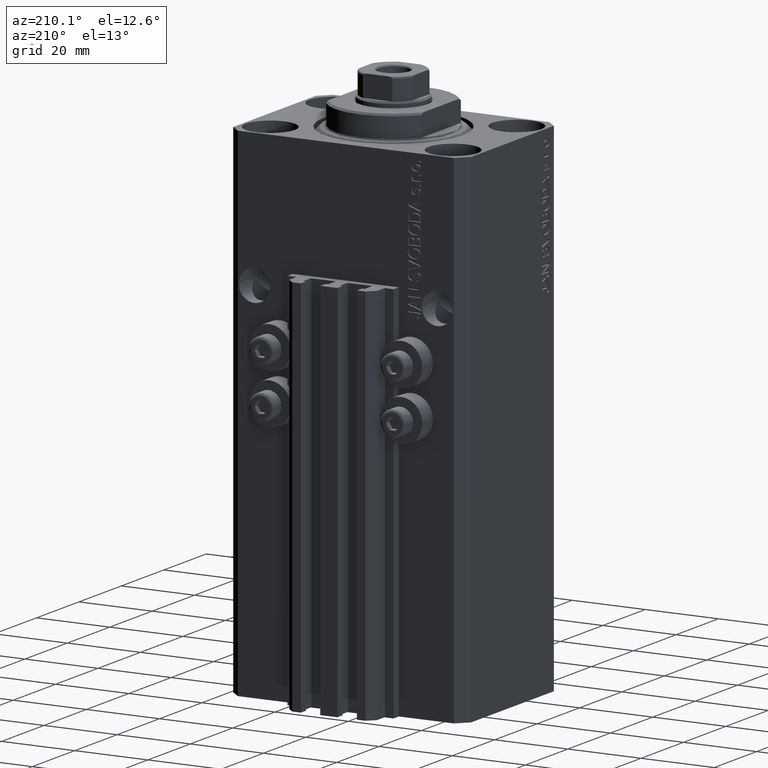
[diagram: clean part render]
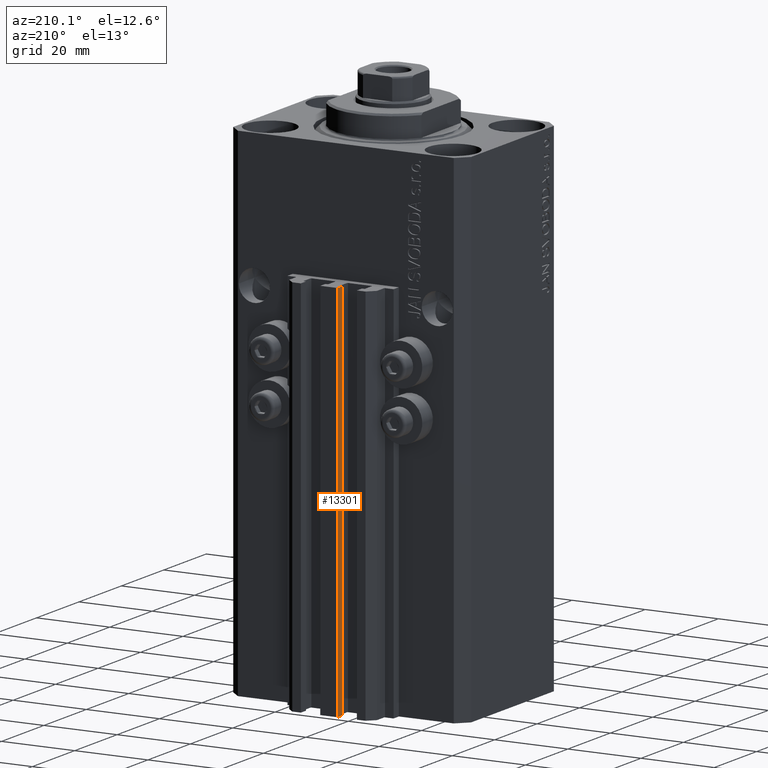
[diagram: same view with one face highlighted and labeled with its STEP entity id]
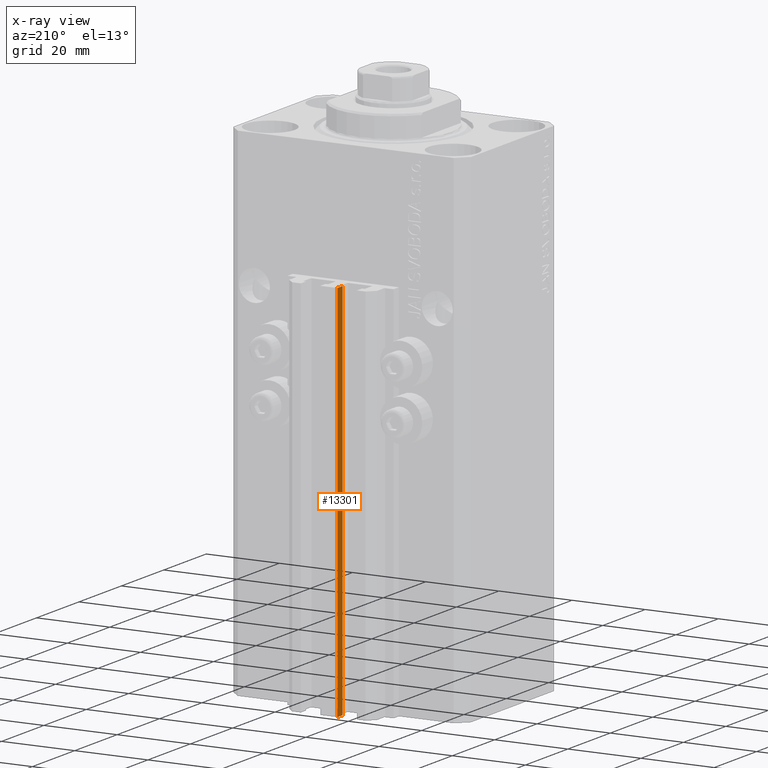
[diagram: x-ray of the same camera — body ghosted, the highlighted face saturated]
A machine part, auxiliary view. The second image highlights one B-rep face of the part: STEP entity #13301.
The next image is the same camera in x-ray: the body ghosted, the highlighted face saturated — about 0% of this face is hidden behind the body in this view.
In plain terms, the highlighted planar face has unit normal (-1, 0, 0).
Its self-contained STEP definition (entity closure, byte-faithful):
#4279 = CARTESIAN_POINT ( 'NONE',  ( -2.350000000000003197, 30.49999999999949907, -137.0000000000000000 ) ) ;
#4382 = CARTESIAN_POINT ( 'NONE',  ( -2.350000000000003197, 30.49999999999949907, -137.0000000000000000 ) ) ;
#5143 = VECTOR ( 'NONE', #42823, 1000.000000000000000 ) ;
#5209 = VERTEX_POINT ( 'NONE', #16045 ) ;
#7258 = LINE ( 'NONE', #4382, #36940 ) ;
#8271 = DIRECTION ( 'NONE',  ( 0.000000000000000000, -1.000000000000000000, 0.000000000000000000 ) ) ;
#11607 = ORIENTED_EDGE ( 'NONE', *, *, #12078, .T. ) ;
#12078 = EDGE_CURVE ( 'NONE', #5209, #15652, #15076, .T. ) ;
#13301 = ADVANCED_FACE ( 'NONE', ( #39895 ), #21757, .T. ) ;
#15076 = LINE ( 'NONE', #26037, #34769 ) ;
#15125 = DIRECTION ( 'NONE',  ( 0.000000000000000000, -1.000000000000000000, 0.000000000000000000 ) ) ;
#15652 = VERTEX_POINT ( 'NONE', #34007 ) ;
#16045 = CARTESIAN_POINT ( 'NONE',  ( -2.350000000000003197, 28.09999999999950049, -137.0000000000000000 ) ) ;
#17670 = VECTOR ( 'NONE', #8271, 1000.000000000000000 ) ;
#19624 = EDGE_CURVE ( 'NONE', #28096, #19827, #42588, .T. ) ;
#19827 = VERTEX_POINT ( 'NONE', #27465 ) ;
#21041 = ORIENTED_EDGE ( 'NONE', *, *, #19624, .F. ) ;
#21106 = CARTESIAN_POINT ( 'NONE',  ( -2.350000000000003197, 30.49999999999949907, -137.0000000000000000 ) ) ;
#21757 = PLANE ( 'NONE',  #41652 ) ;
#26037 = CARTESIAN_POINT ( 'NONE',  ( -2.350000000000003197, 28.09999999999950049, -137.0000000000000000 ) ) ;
#26267 = DIRECTION ( 'NONE',  ( 0.000000000000000000, 0.000000000000000000, 1.000000000000000000 ) ) ;
#27317 = CARTESIAN_POINT ( 'NONE',  ( -2.350000000000003197, 30.49999999999949907, -137.0000000000000000 ) ) ;
#27465 = CARTESIAN_POINT ( 'NONE',  ( -2.350000000000003197, 30.49999999999949907, -33.00000000000000000 ) ) ;
#28096 = VERTEX_POINT ( 'NONE', #27317 ) ;
#29732 = LINE ( 'NONE', #37140, #17670 ) ;
#30832 = ORIENTED_EDGE ( 'NONE', *, *, #33007, .F. ) ;
#32267 = DIRECTION ( 'NONE',  ( 0.000000000000000000, 0.000000000000000000, 1.000000000000000000 ) ) ;
#33007 = EDGE_CURVE ( 'NONE', #19827, #15652, #29732, .T. ) ;
#33319 = ORIENTED_EDGE ( 'NONE', *, *, #39641, .T. ) ;
#34007 = CARTESIAN_POINT ( 'NONE',  ( -2.350000000000003197, 28.09999999999950049, -33.00000000000000000 ) ) ;
#34769 = VECTOR ( 'NONE', #26267, 1000.000000000000000 ) ;
#36940 = VECTOR ( 'NONE', #15125, 1000.000000000000000 ) ;
#37140 = CARTESIAN_POINT ( 'NONE',  ( -2.350000000000003197, 30.49999999999949907, -33.00000000000000000 ) ) ;
#39641 = EDGE_CURVE ( 'NONE', #28096, #5209, #7258, .T. ) ;
#39895 = FACE_OUTER_BOUND ( 'NONE', #41764, .T. ) ;
#41652 = AXIS2_PLACEMENT_3D ( 'NONE', #4279, #43244, #32267 ) ;
#41764 = EDGE_LOOP ( 'NONE', ( #30832, #21041, #33319, #11607 ) ) ;
#42588 = LINE ( 'NONE', #21106, #5143 ) ;
#42823 = DIRECTION ( 'NONE',  ( 0.000000000000000000, 0.000000000000000000, 1.000000000000000000 ) ) ;
#43244 = DIRECTION ( 'NONE',  ( -1.000000000000000000, 0.000000000000000000, 0.000000000000000000 ) ) ;